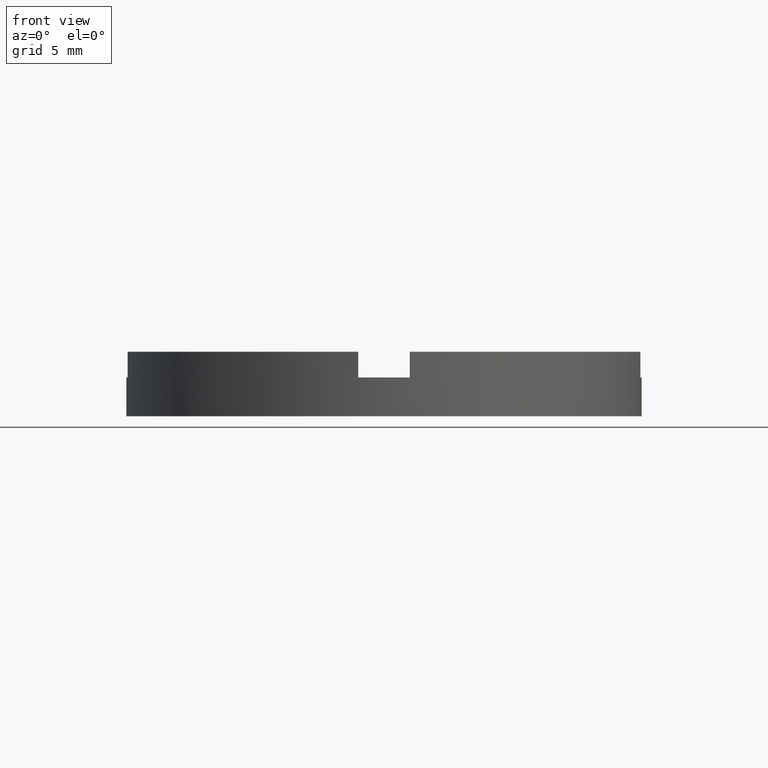
[diagram: clean part render]
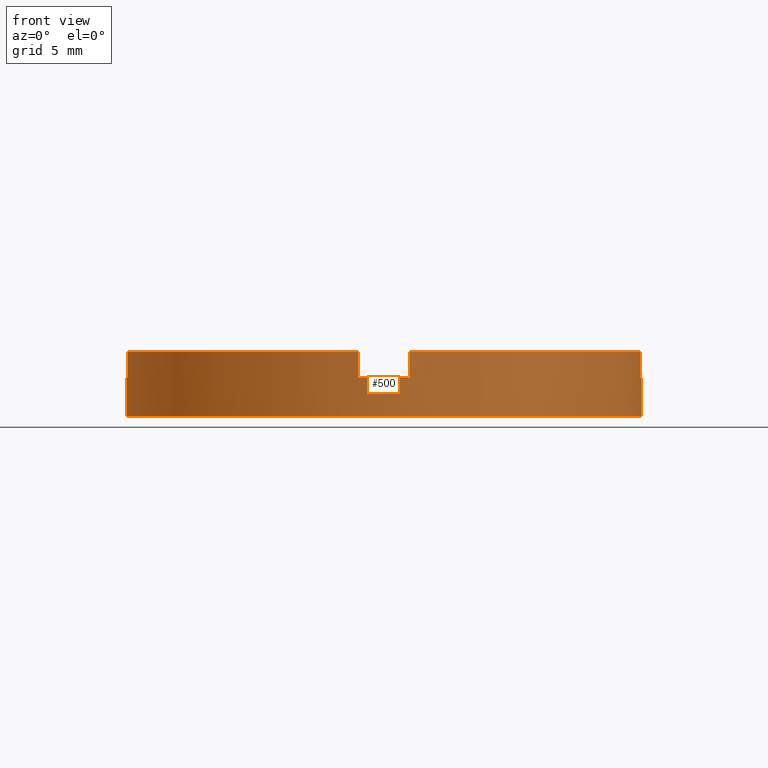
[diagram: same view with one face highlighted and labeled with its STEP entity id]
A machine part, front view. The second image highlights one B-rep face of the part: STEP entity #500.
In plain terms, the highlighted cylindrical surface (partial cylindrical patch) has radius 10 mm, axis along (-0, -0, -1).
Its self-contained STEP definition (entity closure, byte-faithful):
#9 = CIRCLE ( 'NONE', #425, 10.00000000000000000 ) ;
#10 = DIRECTION ( 'NONE',  ( 1.000000000000000000, 0.000000000000000000, 0.000000000000000000 ) ) ;
#13 = LINE ( 'NONE', #228, #32 ) ;
#15 = LINE ( 'NONE', #646, #293 ) ;
#18 = AXIS2_PLACEMENT_3D ( 'NONE', #420, #508, #773 ) ;
#19 = VECTOR ( 'NONE', #775, 1000.000000000000000 ) ;
#26 = VECTOR ( 'NONE', #185, 1000.000000000000000 ) ;
#28 = DIRECTION ( 'NONE',  ( -0.000000000000000000, 0.000000000000000000, 1.000000000000000000 ) ) ;
#32 = VECTOR ( 'NONE', #221, 1000.000000000000000 ) ;
#36 = DIRECTION ( 'NONE',  ( 1.000000000000000000, 0.000000000000000000, 0.000000000000000000 ) ) ;
#54 = DIRECTION ( 'NONE',  ( -0.000000000000000000, -0.000000000000000000, -1.000000000000000000 ) ) ;
#69 = CARTESIAN_POINT ( 'NONE',  ( -0.9999999999999986677, -9.949874371066199430, 1.500000000000000000 ) ) ;
#89 = VERTEX_POINT ( 'NONE', #685 ) ;
#128 = VERTEX_POINT ( 'NONE', #214 ) ;
#139 = CARTESIAN_POINT ( 'NONE',  ( -0.9999999999999986677, -9.949874371066199430, 1.500000000000000000 ) ) ;
#150 = ORIENTED_EDGE ( 'NONE', *, *, #213, .T. ) ;
#167 = VERTEX_POINT ( 'NONE', #514 ) ;
#185 = DIRECTION ( 'NONE',  ( -0.000000000000000000, -0.000000000000000000, -1.000000000000000000 ) ) ;
#192 = CARTESIAN_POINT ( 'NONE',  ( 0.000000000000000000, 0.000000000000000000, 1.500000000000000000 ) ) ;
#205 = CARTESIAN_POINT ( 'NONE',  ( 0.000000000000000000, 0.000000000000000000, 2.500000000000000000 ) ) ;
#211 = EDGE_LOOP ( 'NONE', ( #730, #423, #416, #731, #701, #386, #721, #385, #723, #378, #447, #150 ) ) ;
#212 = AXIS2_PLACEMENT_3D ( 'NONE', #192, #509, #36 ) ;
#213 = EDGE_CURVE ( 'NONE', #418, #400, #576, .T. ) ;
#214 = CARTESIAN_POINT ( 'NONE',  ( -9.949874371066202983, -0.9999999999999640288, 1.500000000000000000 ) ) ;
#217 = VERTEX_POINT ( 'NONE', #469 ) ;
#221 = DIRECTION ( 'NONE',  ( -0.000000000000000000, -0.000000000000000000, 1.000000000000000000 ) ) ;
#228 = CARTESIAN_POINT ( 'NONE',  ( -9.949874371066202983, -0.9999999999999640288, 1.500000000000000000 ) ) ;
#232 = CARTESIAN_POINT ( 'NONE',  ( 1.000000000000001332, -9.949874371066199430, 1.500000000000000000 ) ) ;
#238 = DIRECTION ( 'NONE',  ( -0.000000000000000000, -0.000000000000000000, 1.000000000000000000 ) ) ;
#251 = DIRECTION ( 'NONE',  ( 1.000000000000000000, 0.000000000000000000, 0.000000000000000000 ) ) ;
#261 = EDGE_CURVE ( 'NONE', #472, #399, #615, .T. ) ;
#265 = CIRCLE ( 'NONE', #715, 10.00000000000000000 ) ;
#266 = CARTESIAN_POINT ( 'NONE',  ( -0.9999999999999986677, -9.949874371066199430, 2.500000000000000000 ) ) ;
#268 = CYLINDRICAL_SURFACE ( 'NONE', #375, 10.00000000000000000 ) ;
#272 = CIRCLE ( 'NONE', #300, 10.00000000000000000 ) ;
#274 = CIRCLE ( 'NONE', #286, 10.00000000000000000 ) ;
#275 = LINE ( 'NONE', #432, #19 ) ;
#286 = AXIS2_PLACEMENT_3D ( 'NONE', #556, #28, #10 ) ;
#293 = VECTOR ( 'NONE', #421, 1000.000000000000000 ) ;
#296 = DIRECTION ( 'NONE',  ( -1.000000000000000000, 0.000000000000000000, 0.000000000000000000 ) ) ;
#300 = AXIS2_PLACEMENT_3D ( 'NONE', #577, #654, #724 ) ;
#304 = CARTESIAN_POINT ( 'NONE',  ( 9.949874371066195877, -1.000000000000038192, 2.500000000000000000 ) ) ;
#358 = CARTESIAN_POINT ( 'NONE',  ( 0.000000000000000000, 0.000000000000000000, 2.500000000000000000 ) ) ;
#365 = VECTOR ( 'NONE', #619, 1000.000000000000000 ) ;
#369 = CARTESIAN_POINT ( 'NONE',  ( -10.00000000000000000, 0.000000000000000000, 0.000000000000000000 ) ) ;
#375 = AXIS2_PLACEMENT_3D ( 'NONE', #358, #54, #296 ) ;
#378 = ORIENTED_EDGE ( 'NONE', *, *, #673, .F. ) ;
#385 = ORIENTED_EDGE ( 'NONE', *, *, #394, .F. ) ;
#386 = ORIENTED_EDGE ( 'NONE', *, *, #502, .F. ) ;
#394 = EDGE_CURVE ( 'NONE', #217, #694, #9, .T. ) ;
#399 = VERTEX_POINT ( 'NONE', #304 ) ;
#400 = VERTEX_POINT ( 'NONE', #616 ) ;
#409 = VERTEX_POINT ( 'NONE', #69 ) ;
#412 = EDGE_CURVE ( 'NONE', #409, #694, #522, .T. ) ;
#416 = ORIENTED_EDGE ( 'NONE', *, *, #261, .T. ) ;
#418 = VERTEX_POINT ( 'NONE', #369 ) ;
#420 = CARTESIAN_POINT ( 'NONE',  ( 0.000000000000000000, 0.000000000000000000, 0.000000000000000000 ) ) ;
#421 = DIRECTION ( 'NONE',  ( -0.000000000000000000, -0.000000000000000000, -1.000000000000000000 ) ) ;
#423 = ORIENTED_EDGE ( 'NONE', *, *, #434, .F. ) ;
#425 = AXIS2_PLACEMENT_3D ( 'NONE', #205, #688, #610 ) ;
#432 = CARTESIAN_POINT ( 'NONE',  ( 1.000000000000001332, -9.949874371066199430, 1.500000000000000000 ) ) ;
#434 = EDGE_CURVE ( 'NONE', #472, #89, #265, .T. ) ;
#447 = ORIENTED_EDGE ( 'NONE', *, *, #499, .T. ) ;
#448 = CARTESIAN_POINT ( 'NONE',  ( 9.949874371066195877, -1.000000000000038192, 1.500000000000000000 ) ) ;
#460 = CARTESIAN_POINT ( 'NONE',  ( -10.00000000000000000, 0.000000000000000000, 1.500000000000000000 ) ) ;
#469 = CARTESIAN_POINT ( 'NONE',  ( -9.949874371066202983, -0.9999999999999640288, 2.500000000000000000 ) ) ;
#472 = VERTEX_POINT ( 'NONE', #515 ) ;
#489 = VERTEX_POINT ( 'NONE', #232 ) ;
#497 = EDGE_CURVE ( 'NONE', #489, #167, #275, .T. ) ;
#499 = EDGE_CURVE ( 'NONE', #653, #418, #540, .T. ) ;
#500 = ADVANCED_FACE ( 'NONE', ( #517 ), #268, .T. ) ;
#502 = EDGE_CURVE ( 'NONE', #409, #489, #524, .T. ) ;
#505 = CARTESIAN_POINT ( 'NONE',  ( 0.000000000000000000, 0.000000000000000000, 1.500000000000000000 ) ) ;
#508 = DIRECTION ( 'NONE',  ( 0.000000000000000000, 0.000000000000000000, 1.000000000000000000 ) ) ;
#509 = DIRECTION ( 'NONE',  ( -0.000000000000000000, 0.000000000000000000, 1.000000000000000000 ) ) ;
#514 = CARTESIAN_POINT ( 'NONE',  ( 1.000000000000001332, -9.949874371066199430, 2.500000000000000000 ) ) ;
#515 = CARTESIAN_POINT ( 'NONE',  ( 9.949874371066195877, -1.000000000000038192, 1.500000000000000000 ) ) ;
#517 = FACE_OUTER_BOUND ( 'NONE', #211, .T. ) ;
#522 = LINE ( 'NONE', #139, #534 ) ;
#524 = CIRCLE ( 'NONE', #212, 10.00000000000000000 ) ;
#534 = VECTOR ( 'NONE', #238, 1000.000000000000000 ) ;
#540 = LINE ( 'NONE', #764, #26 ) ;
#552 = EDGE_CURVE ( 'NONE', #89, #400, #15, .T. ) ;
#556 = CARTESIAN_POINT ( 'NONE',  ( 0.000000000000000000, 0.000000000000000000, 1.500000000000000000 ) ) ;
#576 = CIRCLE ( 'NONE', #18, 10.00000000000000000 ) ;
#577 = CARTESIAN_POINT ( 'NONE',  ( 0.000000000000000000, 0.000000000000000000, 2.500000000000000000 ) ) ;
#597 = EDGE_CURVE ( 'NONE', #167, #399, #272, .T. ) ;
#610 = DIRECTION ( 'NONE',  ( 1.000000000000000000, 0.000000000000000000, 0.000000000000000000 ) ) ;
#615 = LINE ( 'NONE', #448, #365 ) ;
#616 = CARTESIAN_POINT ( 'NONE',  ( 10.00000000000000000, 1.224646799147353256E-15, 0.000000000000000000 ) ) ;
#619 = DIRECTION ( 'NONE',  ( -0.000000000000000000, -0.000000000000000000, 1.000000000000000000 ) ) ;
#632 = EDGE_CURVE ( 'NONE', #128, #217, #13, .T. ) ;
#646 = CARTESIAN_POINT ( 'NONE',  ( 10.00000000000000000, 1.224646799147353256E-15, 2.500000000000000000 ) ) ;
#653 = VERTEX_POINT ( 'NONE', #460 ) ;
#654 = DIRECTION ( 'NONE',  ( 0.000000000000000000, 0.000000000000000000, 1.000000000000000000 ) ) ;
#673 = EDGE_CURVE ( 'NONE', #653, #128, #274, .T. ) ;
#677 = DIRECTION ( 'NONE',  ( -0.000000000000000000, 0.000000000000000000, 1.000000000000000000 ) ) ;
#685 = CARTESIAN_POINT ( 'NONE',  ( 10.00000000000000000, 1.224646799147353256E-15, 1.500000000000000000 ) ) ;
#688 = DIRECTION ( 'NONE',  ( 0.000000000000000000, 0.000000000000000000, 1.000000000000000000 ) ) ;
#694 = VERTEX_POINT ( 'NONE', #266 ) ;
#701 = ORIENTED_EDGE ( 'NONE', *, *, #497, .F. ) ;
#715 = AXIS2_PLACEMENT_3D ( 'NONE', #505, #677, #251 ) ;
#721 = ORIENTED_EDGE ( 'NONE', *, *, #412, .T. ) ;
#723 = ORIENTED_EDGE ( 'NONE', *, *, #632, .F. ) ;
#724 = DIRECTION ( 'NONE',  ( 1.000000000000000000, 0.000000000000000000, 0.000000000000000000 ) ) ;
#730 = ORIENTED_EDGE ( 'NONE', *, *, #552, .F. ) ;
#731 = ORIENTED_EDGE ( 'NONE', *, *, #597, .F. ) ;
#764 = CARTESIAN_POINT ( 'NONE',  ( -10.00000000000000000, 0.000000000000000000, 2.500000000000000000 ) ) ;
#773 = DIRECTION ( 'NONE',  ( 1.000000000000000000, 0.000000000000000000, 0.000000000000000000 ) ) ;
#775 = DIRECTION ( 'NONE',  ( -0.000000000000000000, -0.000000000000000000, 1.000000000000000000 ) ) ;